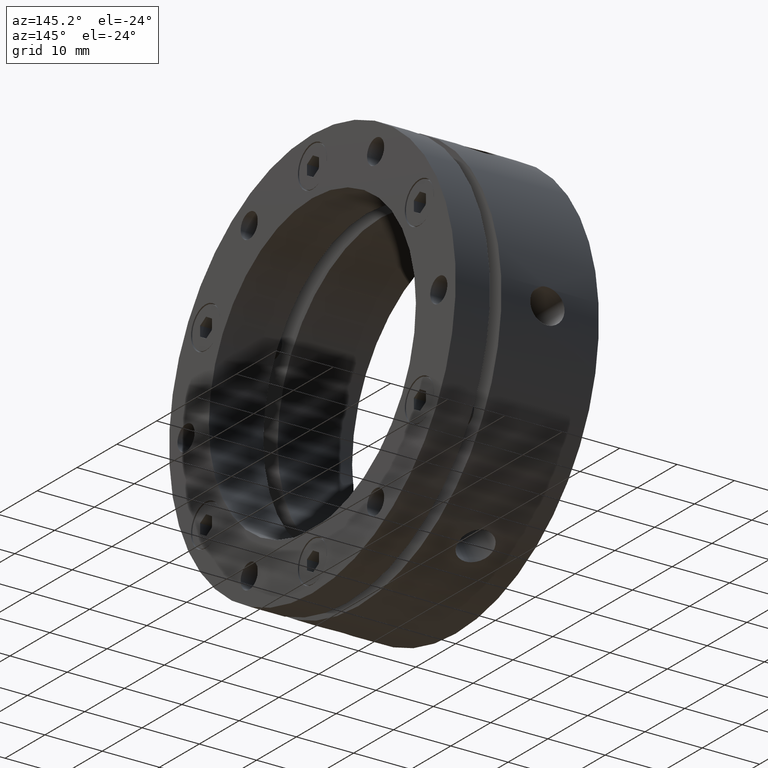
[diagram: clean part render]
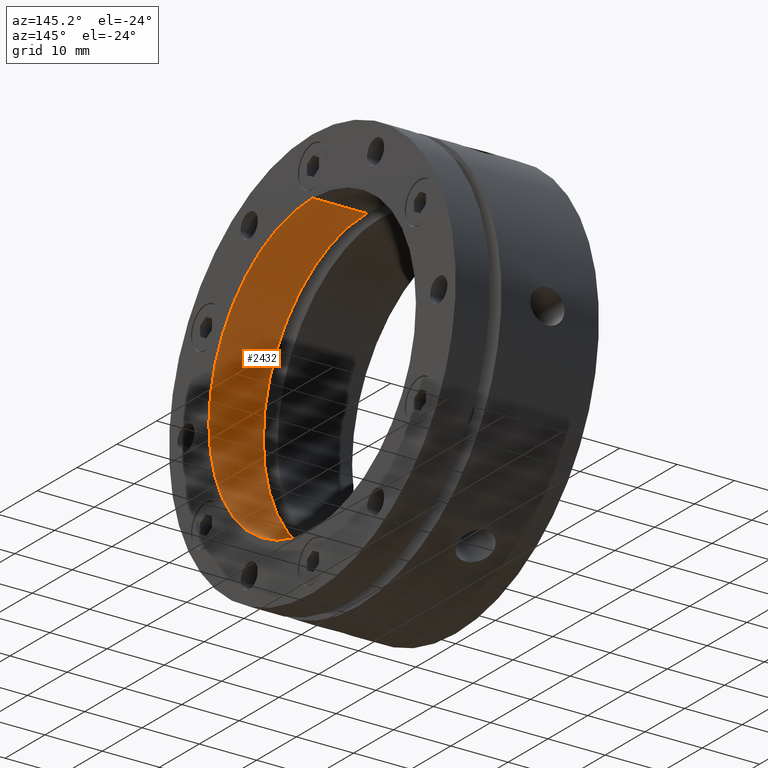
[diagram: same view with one face highlighted and labeled with its STEP entity id]
A machine part, auxiliary view. The second image highlights one B-rep face of the part: STEP entity #2432.
In plain terms, the highlighted cylindrical surface (partial cylindrical patch) has radius 26 mm, axis along (1, 0, 0).
Its self-contained STEP definition (entity closure, byte-faithful):
#173 = EDGE_LOOP ( 'NONE', ( #1299, #1298, #1297, #1295 ) ) ;
#1103 = VERTEX_POINT ( 'NONE', #2052 ) ;
#1105 = VERTEX_POINT ( 'NONE', #2054 ) ;
#1147 = VERTEX_POINT ( 'NONE', #2084 ) ;
#1161 = VERTEX_POINT ( 'NONE', #2096 ) ;
#1295 = ORIENTED_EDGE ( 'NONE', *, *, #4721, .F. ) ;
#1297 = ORIENTED_EDGE ( 'NONE', *, *, #4710, .F. ) ;
#1298 = ORIENTED_EDGE ( 'NONE', *, *, #4673, .T. ) ;
#1299 = ORIENTED_EDGE ( 'NONE', *, *, #4668, .T. ) ;
#2052 = CARTESIAN_POINT ( 'NONE',  ( 24.99999999999999300, 3.184081677783118600E-015, 26.00000000000000400 ) ) ;
#2054 = CARTESIAN_POINT ( 'NONE',  ( 24.99999999999999300, 0.0000000000000000000, -26.00000000000000400 ) ) ;
#2084 = CARTESIAN_POINT ( 'NONE',  ( 15.50000000000000500, 3.184081677783118600E-015, 26.00000000000000400 ) ) ;
#2096 = CARTESIAN_POINT ( 'NONE',  ( 15.50000000000000500, 0.0000000000000000000, -26.00000000000000400 ) ) ;
#2432 = ADVANCED_FACE ( 'NONE', ( #4136 ), #4145, .F. ) ;
#3542 = DIRECTION ( 'NONE',  ( 0.0000000000000000000, 0.0000000000000000000, -1.000000000000000000 ) ) ;
#3544 = DIRECTION ( 'NONE',  ( 1.000000000000000000, 0.0000000000000000000, 0.0000000000000000000 ) ) ;
#3546 = CARTESIAN_POINT ( 'NONE',  ( 12.49999999999999300, 0.0000000000000000000, 0.0000000000000000000 ) ) ;
#3579 = CARTESIAN_POINT ( 'NONE',  ( 15.50000000000000500, 0.0000000000000000000, 0.0000000000000000000 ) ) ;
#3580 = DIRECTION ( 'NONE',  ( -1.000000000000000000, -0.0000000000000000000, -0.0000000000000000000 ) ) ;
#3581 = DIRECTION ( 'NONE',  ( 0.0000000000000000000, 0.0000000000000000000, -1.000000000000000000 ) ) ;
#3972 = AXIS2_PLACEMENT_3D ( 'NONE', #3546, #3544, #3542 ) ;
#3978 = AXIS2_PLACEMENT_3D ( 'NONE', #3579, #3580, #3581 ) ;
#3993 = AXIS2_PLACEMENT_3D ( 'NONE', #4457, #4458, #4459 ) ;
#4136 = FACE_OUTER_BOUND ( 'NONE', #173, .T. ) ;
#4145 = CYLINDRICAL_SURFACE ( 'NONE', #3972, 26.00000000000000400 ) ;
#4159 = CIRCLE ( 'NONE', #3978, 26.00000000000000400 ) ;
#4169 = LINE ( 'NONE', #4374, #4172 ) ;
#4172 = VECTOR ( 'NONE', #4375, 1000.000000000000000 ) ;
#4224 = CIRCLE ( 'NONE', #3993, 26.00000000000000400 ) ;
#4244 = LINE ( 'NONE', #4478, #4246 ) ;
#4246 = VECTOR ( 'NONE', #4474, 1000.000000000000000 ) ;
#4374 = CARTESIAN_POINT ( 'NONE',  ( 12.49999999999999300, 3.184081677783118600E-015, 26.00000000000000400 ) ) ;
#4375 = DIRECTION ( 'NONE',  ( 1.000000000000000000, 0.0000000000000000000, 0.0000000000000000000 ) ) ;
#4457 = CARTESIAN_POINT ( 'NONE',  ( 24.99999999999999300, 0.0000000000000000000, 0.0000000000000000000 ) ) ;
#4458 = DIRECTION ( 'NONE',  ( -1.000000000000000000, -0.0000000000000000000, -0.0000000000000000000 ) ) ;
#4459 = DIRECTION ( 'NONE',  ( 0.0000000000000000000, 0.0000000000000000000, -1.000000000000000000 ) ) ;
#4474 = DIRECTION ( 'NONE',  ( 1.000000000000000000, 0.0000000000000000000, 0.0000000000000000000 ) ) ;
#4478 = CARTESIAN_POINT ( 'NONE',  ( 12.49999999999999300, 0.0000000000000000000, -26.00000000000000400 ) ) ;
#4668 = EDGE_CURVE ( 'NONE', #1161, #1147, #4159, .T. ) ;
#4673 = EDGE_CURVE ( 'NONE', #1147, #1103, #4169, .T. ) ;
#4710 = EDGE_CURVE ( 'NONE', #1105, #1103, #4224, .T. ) ;
#4721 = EDGE_CURVE ( 'NONE', #1161, #1105, #4244, .T. ) ;